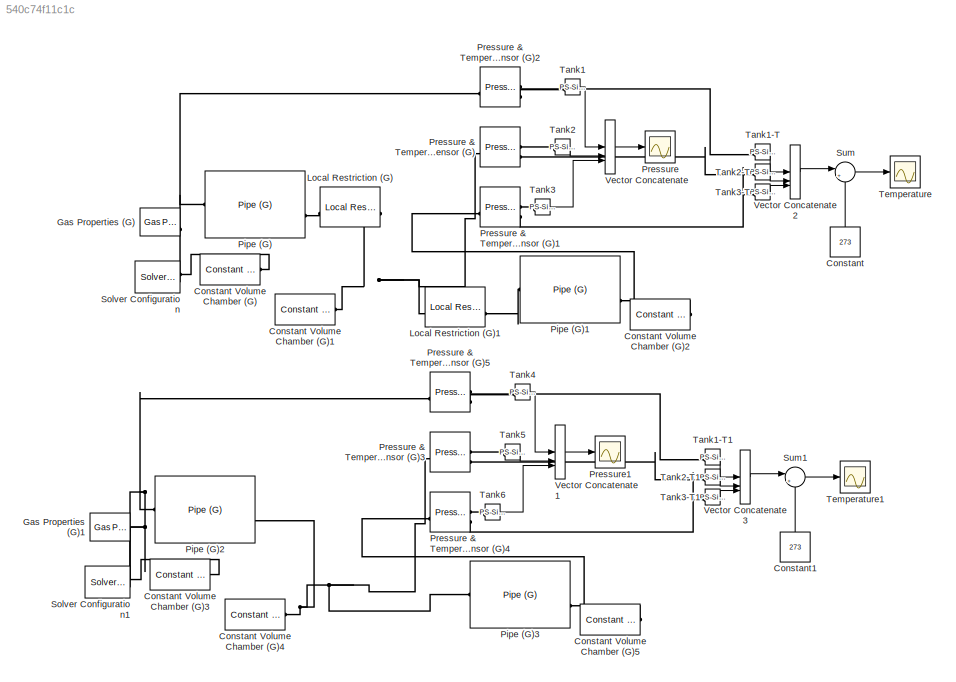
MODEL slx_540c74f11c1c
KIND model
CONFIG AbsTol = auto
CONFIG EnableMultiTasking = off
CONFIG FixedStep = auto
CONFIG MaxStep = auto
CONFIG MinStep = auto
CONFIG RelTol = 1e-3
CONFIG SampleTimeConstraint = Unconstrained
CONFIG SolverName = VariableStepAuto
CONFIG StartTime = 0.0
CONFIG StopTime = 125
BLOCK [Constant] Constant
  NameLocation = right
  Value = 273
BLOCK [Reference] Constant Volume Chamber (G)  REF=fl_lib/Gas/Elements/Constant Volume
Chamber (G)
  SourceBlock = fl_lib/Gas/Elements/Constant Volume\nChamber (G)
  SourceType = Constant Volume\nChamber (G)
BLOCK [Reference] Constant Volume Chamber (G)1  REF=fl_lib/Gas/Elements/Constant Volume
Chamber (G)
  SourceBlock = fl_lib/Gas/Elements/Constant Volume\nChamber (G)
  SourceType = Constant Volume\nChamber (G)
BLOCK [Reference] Constant Volume Chamber (G)2  REF=fl_lib/Gas/Elements/Constant Volume
Chamber (G)
  SourceBlock = fl_lib/Gas/Elements/Constant Volume\nChamber (G)
  SourceType = Constant Volume\nChamber (G)
BLOCK [Reference] Constant Volume Chamber (G)3  REF=fl_lib/Gas/Elements/Constant Volume
Chamber (G)
  SourceBlock = fl_lib/Gas/Elements/Constant Volume\nChamber (G)
  SourceType = Constant Volume\nChamber (G)
BLOCK [Reference] Constant Volume Chamber (G)4  REF=fl_lib/Gas/Elements/Constant Volume
Chamber (G)
  SourceBlock = fl_lib/Gas/Elements/Constant Volume\nChamber (G)
  SourceType = Constant Volume\nChamber (G)
BLOCK [Reference] Constant Volume Chamber (G)5  REF=fl_lib/Gas/Elements/Constant Volume
Chamber (G)
  SourceBlock = fl_lib/Gas/Elements/Constant Volume\nChamber (G)
  SourceType = Constant Volume\nChamber (G)
BLOCK [Constant] Constant1
  NameLocation = right
  Value = 273
BLOCK [Reference] Gas Properties (G)  REF=fl_lib/Gas/Utilities/Gas Properties (G)
  SourceBlock = fl_lib/Gas/Utilities/Gas Properties (G)
  SourceType = Gas Properties (G)
BLOCK [Reference] Gas Properties (G)1  REF=fl_lib/Gas/Utilities/Gas Properties (G)
  SourceBlock = fl_lib/Gas/Utilities/Gas Properties (G)
  SourceType = Gas Properties (G)
BLOCK [Reference] Local Restriction (G)  REF=fl_lib/Gas/Elements/Local Restriction
(G)
  SourceBlock = fl_lib/Gas/Elements/Local Restriction\n(G)
  SourceType = Local Restriction\n(G)
BLOCK [Reference] Local Restriction (G)1  REF=fl_lib/Gas/Elements/Local Restriction
(G)
  SourceBlock = fl_lib/Gas/Elements/Local Restriction\n(G)
  SourceType = Local Restriction\n(G)
BLOCK [Reference] Pipe (G)  REF=fl_lib/Gas/Elements/Pipe (G)
  SourceBlock = fl_lib/Gas/Elements/Pipe (G)
  SourceType = Pipe (G)
BLOCK [Reference] Pipe (G)1  REF=fl_lib/Gas/Elements/Pipe (G)
  SourceBlock = fl_lib/Gas/Elements/Pipe (G)
  SourceType = Pipe (G)
BLOCK [Reference] Pipe (G)2  REF=fl_lib/Gas/Elements/Pipe (G)
  SourceBlock = fl_lib/Gas/Elements/Pipe (G)
  SourceType = Pipe (G)
BLOCK [Reference] Pipe (G)3  REF=fl_lib/Gas/Elements/Pipe (G)
  SourceBlock = fl_lib/Gas/Elements/Pipe (G)
  SourceType = Pipe (G)
BLOCK [Scope] Pressure
  Floating = off
  NumInputPorts = 1
  ScopeSpecificationString = Simulink.scopes.TimeScopeBlockCfg('CurrentConfiguration', extmgr.ConfigurationSet(extmgr.Configuration('Core','General UI',true),extmgr.Configuration('Core','Source UI',true),extmgr.Configuration('Sources','WiredSimulink',true,'DataLoggingVariableName','ScopeData3'),extmgr.Configuration('Visuals','Time Domain',true,'SerializedDisplays',{struct('MinYLimReal','524992.77988','MaxYLimReal','775000.802...<+1561ch>
BLOCK [Reference] Pressure & Temperature Sensor (G)  REF=fl_lib/Gas/Sensors/Pressure &
Temperature Sensor
(G)
  SourceBlock = fl_lib/Gas/Sensors/Pressure &\nTemperature Sensor\n(G)
  SourceType = Pressure &\nTemperature Sensor\n(G)
BLOCK [Reference] Pressure & Temperature Sensor (G)1  REF=fl_lib/Gas/Sensors/Pressure &
Temperature Sensor
(G)
  SourceBlock = fl_lib/Gas/Sensors/Pressure &\nTemperature Sensor\n(G)
  SourceType = Pressure &\nTemperature Sensor\n(G)
BLOCK [Reference] Pressure & Temperature Sensor (G)2  REF=fl_lib/Gas/Sensors/Pressure &
Temperature Sensor
(G)
  SourceBlock = fl_lib/Gas/Sensors/Pressure &\nTemperature Sensor\n(G)
  SourceType = Pressure &\nTemperature Sensor\n(G)
BLOCK [Reference] Pressure & Temperature Sensor (G)3  REF=fl_lib/Gas/Sensors/Pressure &
Temperature Sensor
(G)
  SourceBlock = fl_lib/Gas/Sensors/Pressure &\nTemperature Sensor\n(G)
  SourceType = Pressure &\nTemperature Sensor\n(G)
BLOCK [Reference] Pressure & Temperature Sensor (G)4  REF=fl_lib/Gas/Sensors/Pressure &
Temperature Sensor
(G)
  SourceBlock = fl_lib/Gas/Sensors/Pressure &\nTemperature Sensor\n(G)
  SourceType = Pressure &\nTemperature Sensor\n(G)
BLOCK [Reference] Pressure & Temperature Sensor (G)5  REF=fl_lib/Gas/Sensors/Pressure &
Temperature Sensor
(G)
  SourceBlock = fl_lib/Gas/Sensors/Pressure &\nTemperature Sensor\n(G)
  SourceType = Pressure &\nTemperature Sensor\n(G)
BLOCK [Scope] Pressure1
  Floating = off
  NumInputPorts = 1
  ScopeSpecificationString = Simulink.scopes.TimeScopeBlockCfg('CurrentConfiguration', extmgr.ConfigurationSet(extmgr.Configuration('Core','General UI',true),extmgr.Configuration('Core','Source UI',true),extmgr.Configuration('Sources','WiredSimulink',true),extmgr.Configuration('Visuals','Time Domain',true,'SerializedDisplays',{struct('MinYLimReal','524986.54979','MaxYLimReal','775001.49447','YLabelReal','','MinYLimMag','52498...<+1522ch>
BLOCK [Reference] Solver Configuration  REF=nesl_utility/Solver
Configuration
  SourceBlock = nesl_utility/Solver\nConfiguration
  SourceType = Solver\nConfiguration
BLOCK [Reference] Solver Configuration1  REF=nesl_utility/Solver
Configuration
  SourceBlock = nesl_utility/Solver\nConfiguration
  SourceType = Solver\nConfiguration
BLOCK [Sum] Sum
  Inputs = |+-
BLOCK [Sum] Sum1
  Inputs = |+-
BLOCK [Reference] Tank1  REF=nesl_utility/PS-Simulink
Converter
  SourceBlock = nesl_utility/PS-Simulink\nConverter
  SourceType = PS-Simulink\nConverter
BLOCK [Reference] Tank1-T  REF=nesl_utility/PS-Simulink
Converter
  SourceBlock = nesl_utility/PS-Simulink\nConverter
  SourceType = PS-Simulink\nConverter
BLOCK [Reference] Tank1-T1  REF=nesl_utility/PS-Simulink
Converter
  SourceBlock = nesl_utility/PS-Simulink\nConverter
  SourceType = PS-Simulink\nConverter
BLOCK [Reference] Tank2  REF=nesl_utility/PS-Simulink
Converter
  SourceBlock = nesl_utility/PS-Simulink\nConverter
  SourceType = PS-Simulink\nConverter
BLOCK [Reference] Tank2-T  REF=nesl_utility/PS-Simulink
Converter
  SourceBlock = nesl_utility/PS-Simulink\nConverter
  SourceType = PS-Simulink\nConverter
BLOCK [Reference] Tank2-T1  REF=nesl_utility/PS-Simulink
Converter
  SourceBlock = nesl_utility/PS-Simulink\nConverter
  SourceType = PS-Simulink\nConverter
BLOCK [Reference] Tank3  REF=nesl_utility/PS-Simulink
Converter
  SourceBlock = nesl_utility/PS-Simulink\nConverter
  SourceType = PS-Simulink\nConverter
BLOCK [Reference] Tank3-T  REF=nesl_utility/PS-Simulink
Converter
  SourceBlock = nesl_utility/PS-Simulink\nConverter
  SourceType = PS-Simulink\nConverter
BLOCK [Reference] Tank3-T1  REF=nesl_utility/PS-Simulink
Converter
  SourceBlock = nesl_utility/PS-Simulink\nConverter
  SourceType = PS-Simulink\nConverter
BLOCK [Reference] Tank4  REF=nesl_utility/PS-Simulink
Converter
  SourceBlock = nesl_utility/PS-Simulink\nConverter
  SourceType = PS-Simulink\nConverter
BLOCK [Reference] Tank5  REF=nesl_utility/PS-Simulink
Converter
  SourceBlock = nesl_utility/PS-Simulink\nConverter
  SourceType = PS-Simulink\nConverter
BLOCK [Reference] Tank6  REF=nesl_utility/PS-Simulink
Converter
  SourceBlock = nesl_utility/PS-Simulink\nConverter
  SourceType = PS-Simulink\nConverter
BLOCK [Scope] Temperature
  Floating = off
  NumInputPorts = 1
  ScopeSpecificationString = Simulink.scopes.TimeScopeBlockCfg('CurrentConfiguration', extmgr.ConfigurationSet(extmgr.Configuration('Core','General UI',true),extmgr.Configuration('Core','Source UI',true),extmgr.Configuration('Sources','WiredSimulink',true,'DataLoggingVariableName','ScopeData1'),extmgr.Configuration('Visuals','Time Domain',true,'SerializedDisplays',{struct('MinYLimReal','16.69046','MaxYLimReal','53.78336','YLa...<+1590ch>
BLOCK [Scope] Temperature1
  Floating = off
  NumInputPorts = 1
  ScopeSpecificationString = Simulink.scopes.TimeScopeBlockCfg('CurrentConfiguration', extmgr.ConfigurationSet(extmgr.Configuration('Core','General UI',true),extmgr.Configuration('Core','Source UI',true),extmgr.Configuration('Sources','WiredSimulink',true,'DataLoggingVariableName','ScopeData2'),extmgr.Configuration('Visuals','Time Domain',true,'SerializedDisplays',{struct('MinYLimReal','16.69046','MaxYLimReal','53.78336','YLa...<+1616ch>
BLOCK [Concatenate] Vector Concatenate
  NumInputs = 3
BLOCK [Concatenate] Vector Concatenate1
  NumInputs = 3
BLOCK [Concatenate] Vector Concatenate2
  NumInputs = 3
BLOCK [Concatenate] Vector Concatenate3
  NumInputs = 3
LINE Constant1:1 -> Sum1:2
LINE Constant:1 -> Sum:2
LINE Sum1:1 -> Temperature1:1
LINE Sum:1 -> Temperature:1
LINE Tank1-T1:1 -> Vector Concatenate3:1
LINE Tank1-T:1 -> Vector Concatenate2:1
LINE Tank1:1 -> Vector Concatenate:1
LINE Tank2-T1:1 -> Vector Concatenate3:2
LINE Tank2-T:1 -> Vector Concatenate2:2
LINE Tank2:1 -> Vector Concatenate:2
LINE Tank3-T1:1 -> Vector Concatenate3:3
LINE Tank3-T:1 -> Vector Concatenate2:3
LINE Tank3:1 -> Vector Concatenate:3
LINE Tank4:1 -> Vector Concatenate1:1
LINE Tank5:1 -> Vector Concatenate1:2
LINE Tank6:1 -> Vector Concatenate1:3
LINE Vector Concatenate1:1 -> Pressure1:1
LINE Vector Concatenate2:1 -> Sum:1
LINE Vector Concatenate3:1 -> Sum1:1
LINE Vector Concatenate:1 -> Pressure:1
PNET net1: Constant Volume Chamber (G)1:LConn1 -- Local Restriction (G)1:LConn1 -- Local Restriction (G):RConn1 -- Pressure & Temperature Sensor (G):LConn1
PNET net2: Constant Volume Chamber (G)2:LConn1 -- Pipe (G)1:RConn1 -- Pressure & Temperature Sensor (G)1:LConn1
PNET net3: Constant Volume Chamber (G)3:LConn1 -- Gas Properties (G)1:RConn1 -- Pipe (G)2:LConn1 -- Pressure & Temperature Sensor (G)5:LConn1 -- Solver Configuration1:RConn1
PNET net4: Constant Volume Chamber (G)4:LConn1 -- Pipe (G)2:RConn1 -- Pipe (G)3:LConn1 -- Pressure & Temperature Sensor (G)3:LConn1
PNET net5: Constant Volume Chamber (G)5:LConn1 -- Pipe (G)3:RConn1 -- Pressure & Temperature Sensor (G)4:LConn1
PNET net6: Constant Volume Chamber (G):LConn1 -- Gas Properties (G):RConn1 -- Pipe (G):LConn1 -- Pressure & Temperature Sensor (G)2:LConn1 -- Solver Configuration:RConn1
PLINE Local Restriction (G)1:RConn1 -- Pipe (G)1:LConn1
PLINE Local Restriction (G):LConn1 -- Pipe (G):RConn1
PLINE Pressure & Temperature Sensor (G)1:RConn1 -- Tank3:LConn1
PLINE Pressure & Temperature Sensor (G)1:RConn2 -- Tank3-T:LConn1
PLINE Pressure & Temperature Sensor (G)2:RConn1 -- Tank1:LConn1
PLINE Pressure & Temperature Sensor (G)2:RConn2 -- Tank1-T:LConn1
PLINE Pressure & Temperature Sensor (G)3:RConn1 -- Tank5:LConn1
PLINE Pressure & Temperature Sensor (G)3:RConn2 -- Tank2-T1:LConn1
PLINE Pressure & Temperature Sensor (G)4:RConn1 -- Tank6:LConn1
PLINE Pressure & Temperature Sensor (G)4:RConn2 -- Tank3-T1:LConn1
PLINE Pressure & Temperature Sensor (G)5:RConn1 -- Tank4:LConn1
PLINE Pressure & Temperature Sensor (G)5:RConn2 -- Tank1-T1:LConn1
PLINE Pressure & Temperature Sensor (G):RConn1 -- Tank2:LConn1
PLINE Pressure & Temperature Sensor (G):RConn2 -- Tank2-T:LConn1
note: PNET lines group multi-terminal physical nets as a canonical sorted terminal list (undirected conserving connections); 2-terminal nets keep the pairwise PLINE form
